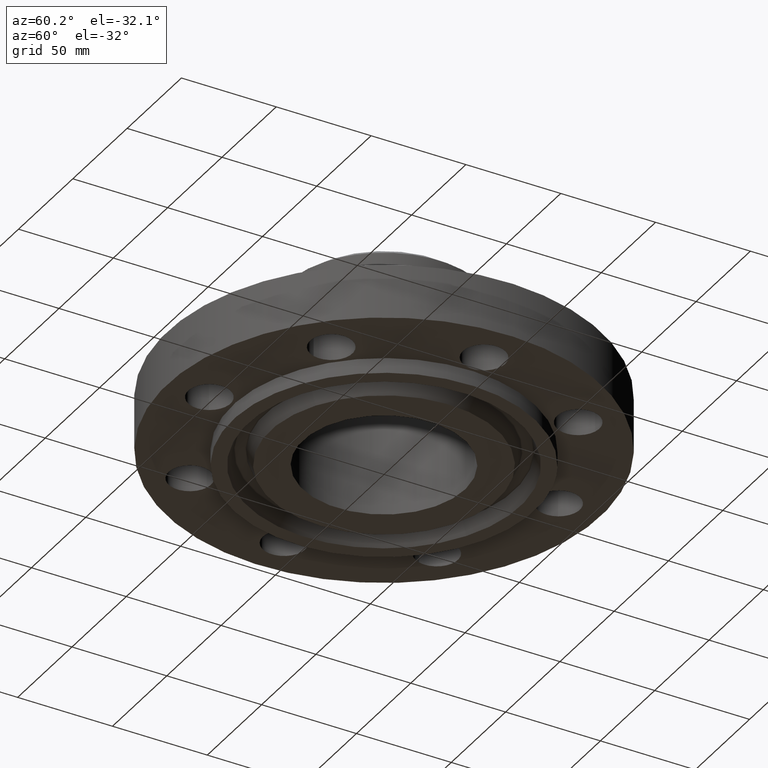
[diagram: clean part render]
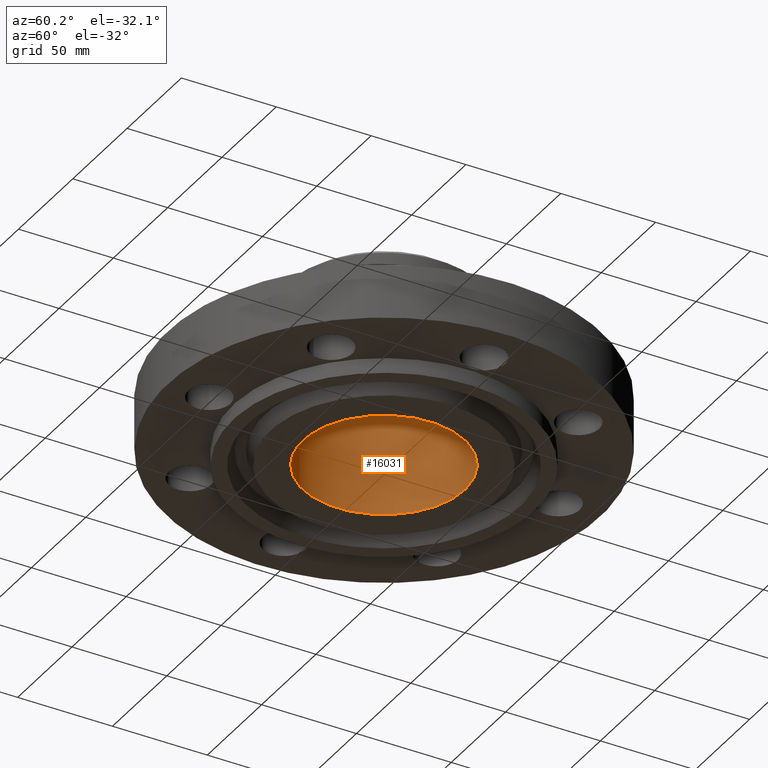
[diagram: same view with one face highlighted and labeled with its STEP entity id]
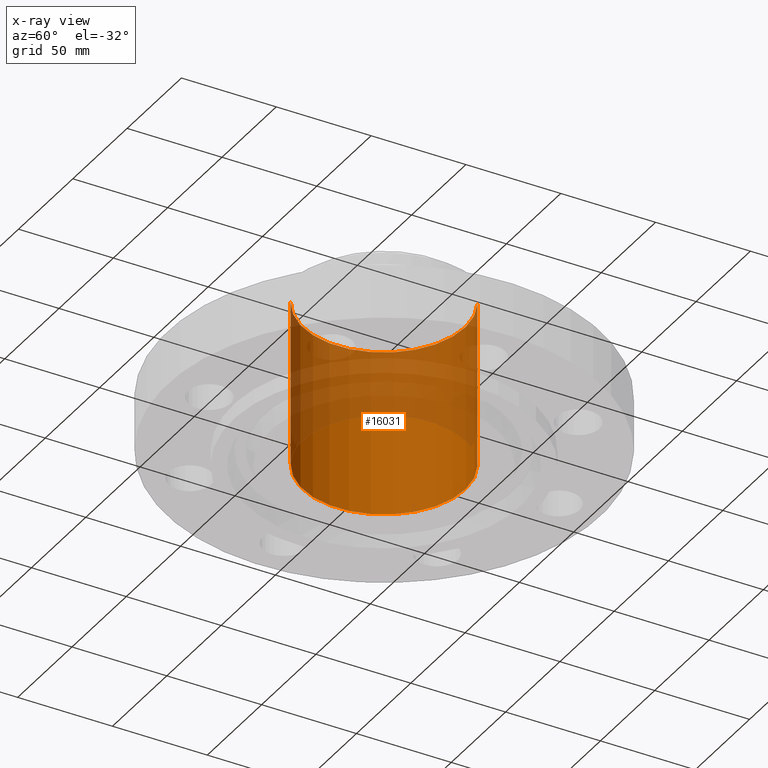
[diagram: x-ray of the same camera — body ghosted, the highlighted face saturated]
A machine part, auxiliary view. The second image highlights one B-rep face of the part: STEP entity #16031.
The next image is the same camera in x-ray: the body ghosted, the highlighted face saturated — about 52% of this face is hidden behind the body in this view.
In plain terms, the highlighted cylindrical surface (partial cylindrical patch) has radius 42.7228 mm, axis along (-0, 0, -1).
Its self-contained STEP definition (entity closure, byte-faithful):
#5167=AXIS2_PLACEMENT_3D('Circle Axis2P3D',#5165,#5166,$) ;
#16004=AXIS2_PLACEMENT_3D('Cylinder Axis2P3D',#16001,#16002,#16003) ;
#16015=AXIS2_PLACEMENT_3D('Circle Axis2P3D',#16013,#16014,$) ;
#5165=CARTESIAN_POINT('Axis2P3D Location',(4.36650890423E-011,-6.52132765986E-012,3.13000000001)) ;
#5169=CARTESIAN_POINT('Vertex',(-0.806393755937,-1.4760938691,3.13000000001)) ;
#5171=CARTESIAN_POINT('Vertex',(0.806393755938,1.47609386911,3.13)) ;
#16001=CARTESIAN_POINT('Axis2P3D Location',(0.,0.,1.40850000001)) ;
#16006=CARTESIAN_POINT('Line Origine',(-0.806393755938,-1.47609386911,1.40850000001)) ;
#16010=CARTESIAN_POINT('Vertex',(-0.806393755938,-1.47609386911,-0.312999999975)) ;
#16013=CARTESIAN_POINT('Axis2P3D Location',(0.,0.,-0.312999999975)) ;
#16017=CARTESIAN_POINT('Vertex',(0.806393755937,1.47609386911,-0.313000000001)) ;
#16020=CARTESIAN_POINT('Line Origine',(0.806393755938,1.47609386911,1.40850000001)) ;
#5166=DIRECTION('Axis2P3D Direction',(0.,0.,-0.0393700787402)) ;
#16002=DIRECTION('Axis2P3D Direction',(-0.,0.,-0.0393700787402)) ;
#16003=DIRECTION('Axis2P3D XDirection',(-0.0188750212048,-0.0345504945626,0.)) ;
#16007=DIRECTION('Vector Direction',(0.,0.,-0.0393700787402)) ;
#16014=DIRECTION('Axis2P3D Direction',(-0.,0.,-0.0393700787402)) ;
#16021=DIRECTION('Vector Direction',(0.,0.,-0.0393700787402)) ;
#16008=VECTOR('Line Direction',#16007,0.0393700787402) ;
#16022=VECTOR('Line Direction',#16021,0.0393700787402) ;
#16026=ORIENTED_EDGE('',*,*,#5173,.F.) ;
#16027=ORIENTED_EDGE('',*,*,#16012,.T.) ;
#16028=ORIENTED_EDGE('',*,*,#16019,.T.) ;
#16029=ORIENTED_EDGE('',*,*,#16024,.F.) ;
#16031=ADVANCED_FACE('PartBody',(#16030),#16005,.F.) ;
#5168=CIRCLE('generated circle',#5167,1.68200000002) ;
#16016=CIRCLE('generated circle',#16015,1.68200000001) ;
#16005=CYLINDRICAL_SURFACE('generated cylinder',#16004,1.68200000001) ;
#5173=EDGE_CURVE('',#5170,#5172,#5168,.T.) ;
#16012=EDGE_CURVE('',#5170,#16011,#16009,.T.) ;
#16019=EDGE_CURVE('',#16011,#16018,#16016,.T.) ;
#16024=EDGE_CURVE('',#5172,#16018,#16023,.T.) ;
#16025=EDGE_LOOP('',(#16026,#16027,#16028,#16029)) ;
#16030=FACE_OUTER_BOUND('',#16025,.T.) ;
#16009=LINE('Line',#16006,#16008) ;
#16023=LINE('Line',#16020,#16022) ;
#5170=VERTEX_POINT('',#5169) ;
#5172=VERTEX_POINT('',#5171) ;
#16011=VERTEX_POINT('',#16010) ;
#16018=VERTEX_POINT('',#16017) ;